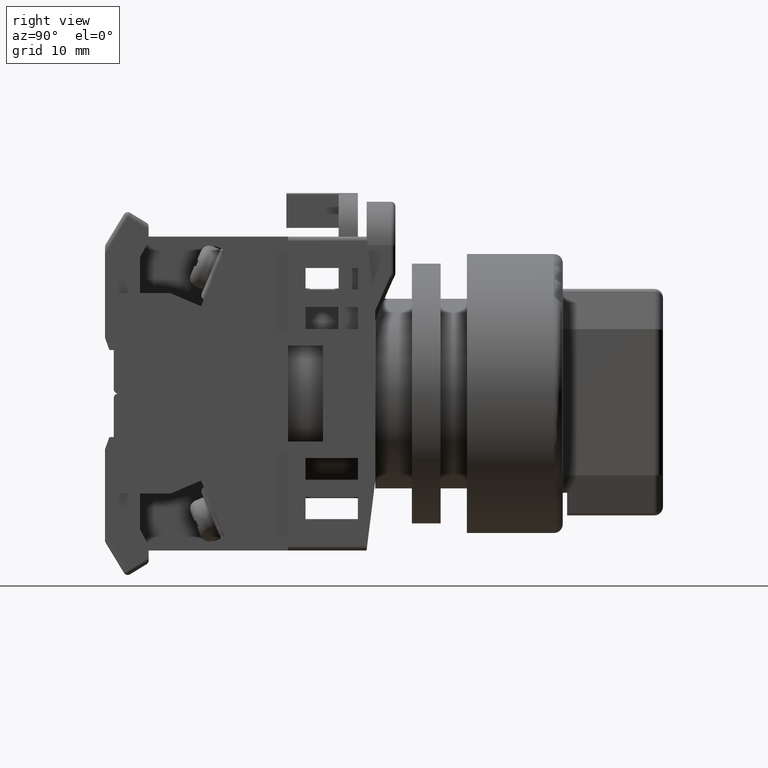
[diagram: clean part render]
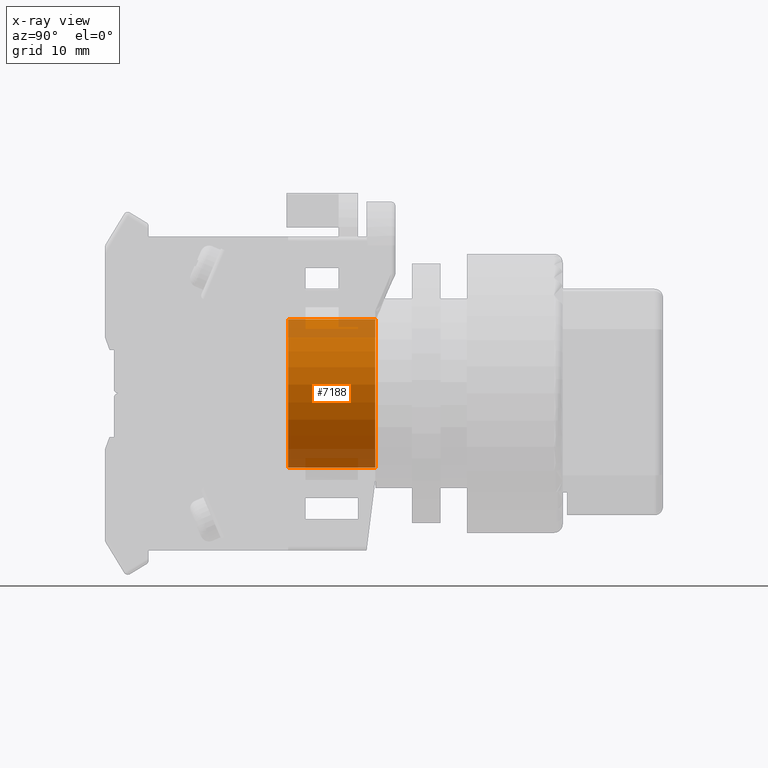
[diagram: x-ray — body ghosted, one internal face saturated and labeled with its STEP entity id]
A machine part, right view, then the same camera in x-ray: the body is ghosted and one INTERNAL B-rep face — a face not visible from any outside direction — is saturated and labeled: STEP entity #7188.
In plain terms, the highlighted cylindrical surface (partial cylindrical patch) has radius 8.5 mm, axis along (-0, 1, -0).
Its self-contained STEP definition (entity closure, byte-faithful):
#20 = CARTESIAN_POINT ( 'NONE',  ( 0.0000000000000000000, -20.50000000000000000, 8.500000000000000000 ) ) ;
#255 = CYLINDRICAL_SURFACE ( 'NONE', #8033, 8.500000000000000000 ) ;
#923 = DIRECTION ( 'NONE',  ( -0.0000000000000000000, 1.000000000000000000, -0.0000000000000000000 ) ) ;
#1930 = VERTEX_POINT ( 'NONE', #6491 ) ;
#2962 = VERTEX_POINT ( 'NONE', #10150 ) ;
#3179 = CARTESIAN_POINT ( 'NONE',  ( 0.0000000000000000000, -20.50000000000000000, 0.0000000000000000000 ) ) ;
#4048 = CARTESIAN_POINT ( 'NONE',  ( 1.040949779275250100E-015, -20.50000000000000000, -8.500000000000000000 ) ) ;
#4530 = DIRECTION ( 'NONE',  ( 0.0000000000000000000, 0.0000000000000000000, -1.000000000000000000 ) ) ;
#4776 = LINE ( 'NONE', #4048, #8351 ) ;
#5511 = CARTESIAN_POINT ( 'NONE',  ( 0.0000000000000000000, -10.50000000000000000, 0.0000000000000000000 ) ) ;
#5816 = AXIS2_PLACEMENT_3D ( 'NONE', #3179, #12543, #4530 ) ;
#6027 = ORIENTED_EDGE ( 'NONE', *, *, #13697, .T. ) ;
#6069 = ORIENTED_EDGE ( 'NONE', *, *, #9959, .F. ) ;
#6348 = ORIENTED_EDGE ( 'NONE', *, *, #8419, .F. ) ;
#6491 = CARTESIAN_POINT ( 'NONE',  ( 0.0000000000000000000, -10.50000000000000000, 8.500000000000000000 ) ) ;
#6834 = DIRECTION ( 'NONE',  ( 0.0000000000000000000, 0.0000000000000000000, 1.000000000000000000 ) ) ;
#7188 = ADVANCED_FACE ( 'NONE', ( #14534 ), #255, .T. ) ;
#8033 = AXIS2_PLACEMENT_3D ( 'NONE', #15609, #923, #8935 ) ;
#8160 = CARTESIAN_POINT ( 'NONE',  ( 1.040949779275250100E-015, -20.50000000000000000, -8.500000000000000000 ) ) ;
#8351 = VECTOR ( 'NONE', #12050, 1000.000000000000000 ) ;
#8419 = EDGE_CURVE ( 'NONE', #10299, #1930, #13364, .T. ) ;
#8878 = ORIENTED_EDGE ( 'NONE', *, *, #16141, .T. ) ;
#8935 = DIRECTION ( 'NONE',  ( 0.0000000000000000000, 0.0000000000000000000, 1.000000000000000000 ) ) ;
#9959 = EDGE_CURVE ( 'NONE', #16867, #10299, #15959, .T. ) ;
#10150 = CARTESIAN_POINT ( 'NONE',  ( 1.040949779275250100E-015, -10.50000000000000000, -8.500000000000000000 ) ) ;
#10299 = VERTEX_POINT ( 'NONE', #20 ) ;
#12050 = DIRECTION ( 'NONE',  ( -0.0000000000000000000, 1.000000000000000000, -0.0000000000000000000 ) ) ;
#12141 = CIRCLE ( 'NONE', #16104, 8.500000000000000000 ) ;
#12543 = DIRECTION ( 'NONE',  ( 0.0000000000000000000, -1.000000000000000000, 0.0000000000000000000 ) ) ;
#13364 = LINE ( 'NONE', #15245, #16492 ) ;
#13697 = EDGE_CURVE ( 'NONE', #2962, #1930, #12141, .T. ) ;
#14534 = FACE_OUTER_BOUND ( 'NONE', #15791, .T. ) ;
#14864 = DIRECTION ( 'NONE',  ( -0.0000000000000000000, -1.000000000000000000, -0.0000000000000000000 ) ) ;
#15245 = CARTESIAN_POINT ( 'NONE',  ( 0.0000000000000000000, -20.50000000000000000, 8.500000000000000000 ) ) ;
#15609 = CARTESIAN_POINT ( 'NONE',  ( 0.0000000000000000000, -20.50000000000000000, 0.0000000000000000000 ) ) ;
#15791 = EDGE_LOOP ( 'NONE', ( #6069, #8878, #6027, #6348 ) ) ;
#15959 = CIRCLE ( 'NONE', #5816, 8.500000000000000000 ) ;
#16104 = AXIS2_PLACEMENT_3D ( 'NONE', #5511, #14864, #6834 ) ;
#16141 = EDGE_CURVE ( 'NONE', #16867, #2962, #4776, .T. ) ;
#16492 = VECTOR ( 'NONE', #16653, 1000.000000000000000 ) ;
#16653 = DIRECTION ( 'NONE',  ( -0.0000000000000000000, 1.000000000000000000, -0.0000000000000000000 ) ) ;
#16867 = VERTEX_POINT ( 'NONE', #8160 ) ;